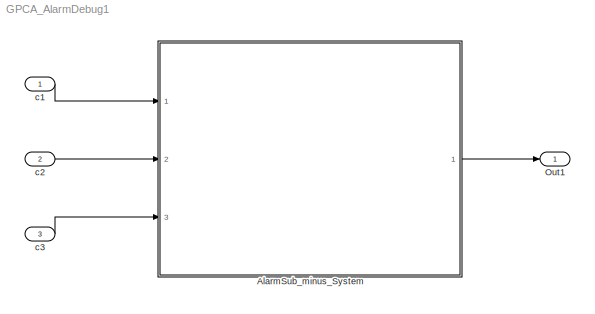
MODEL GPCA_AlarmDebug1
KIND model
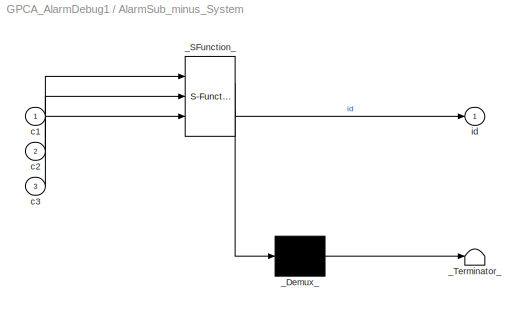
BLOCK [SubSystem] AlarmSub_minus_System
  ErrorFcn = Stateflow.Translate.translate
  PermitHierarchicalResolution = ExplicitOnly
  Ports = [3, 1]
  RequestExecContextInheritance = off
  SFBlockType = Chart
  SID = 1
  TreatAsAtomicUnit = on
  Variant = off
BLOCK [Demux] AlarmSub_minus_System/_Demux_
  Outputs = 1
  Ports = [1, 1]
  SID = 1::330
BLOCK [S-Function] AlarmSub_minus_System/_SFunction_
  EnableBusSupport = on
  FunctionName = sf_sfun
  PortCounts = [3 2]
  Ports = [3, 2]
  SFcnIsStateOwnerBlock = off
  SFunctionDeploymentMode = off
  SID = 1::329
  Tag = Stateflow S-Function GPCA_AlarmDebug1 2
BLOCK [Terminator] AlarmSub_minus_System/_Terminator_
  SID = 1::331
BLOCK [Inport] AlarmSub_minus_System/c1
  IconDisplay = Port number
  OutDataTypeStr = boolean
  SID = 1::389
BLOCK [Inport] AlarmSub_minus_System/c2
  IconDisplay = Port number
  OutDataTypeStr = boolean
  Port = 2
  SID = 1::390
BLOCK [Inport] AlarmSub_minus_System/c3
  IconDisplay = Port number
  OutDataTypeStr = boolean
  Port = 3
  SID = 1::391
BLOCK [Outport] AlarmSub_minus_System/id
  IconDisplay = Port number
  SID = 1::381
BLOCK [Outport] Out1
  IconDisplay = Port number
  SID = 1037
BLOCK [Inport] c1
  IconDisplay = Port number
  OutDataTypeStr = boolean
  PortDimensions = 1
  SID = 1038
BLOCK [Inport] c2
  IconDisplay = Port number
  OutDataTypeStr = boolean
  Port = 2
  PortDimensions = 1
  SID = 1039
BLOCK [Inport] c3
  IconDisplay = Port number
  OutDataTypeStr = boolean
  Port = 3
  PortDimensions = 1
  SID = 1040
LINE AlarmSub_minus_System/_Demux_:1 -> AlarmSub_minus_System/_Terminator_:1
LINE AlarmSub_minus_System/_SFunction_:1 -> AlarmSub_minus_System/_Demux_:1
LINE AlarmSub_minus_System/_SFunction_:2 -> AlarmSub_minus_System/id:1
LINE AlarmSub_minus_System/c1:1 -> AlarmSub_minus_System/_SFunction_:1
LINE AlarmSub_minus_System/c2:1 -> AlarmSub_minus_System/_SFunction_:2
LINE AlarmSub_minus_System/c3:1 -> AlarmSub_minus_System/_SFunction_:3
LINE AlarmSub_minus_System:1 -> Out1:1
LINE c1:1 -> AlarmSub_minus_System:1
LINE c2:1 -> AlarmSub_minus_System:2
LINE c3:1 -> AlarmSub_minus_System:3
CHART AlarmSub_minus_System states=7 transitions=7
  STATE_LABEL 'Alarms'
  STATE_LABEL 'Notification1\\nen: id = 21;'
  STATE_LABEL 'NOT_ON\\nen: id = 1;'
  STATE_LABEL 'Notification2\\nen: id = 22;'
  STATE_LABEL 'A\\nen : id = 3;'
  STATE_LABEL 'B\\nen : id = 5;'
  STATE_LABEL 'B\\nen : id = 4;'
